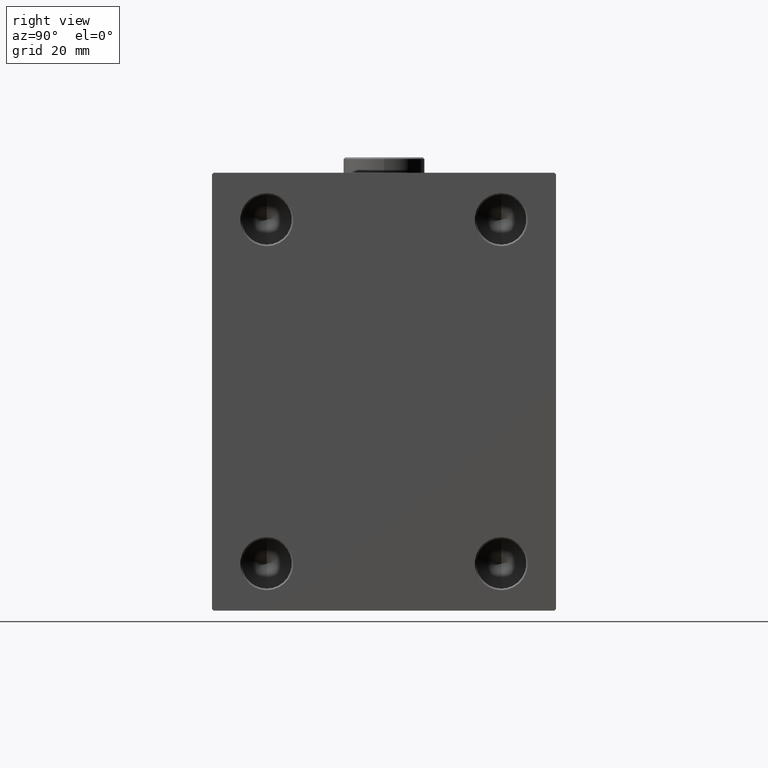
[diagram: clean part render]
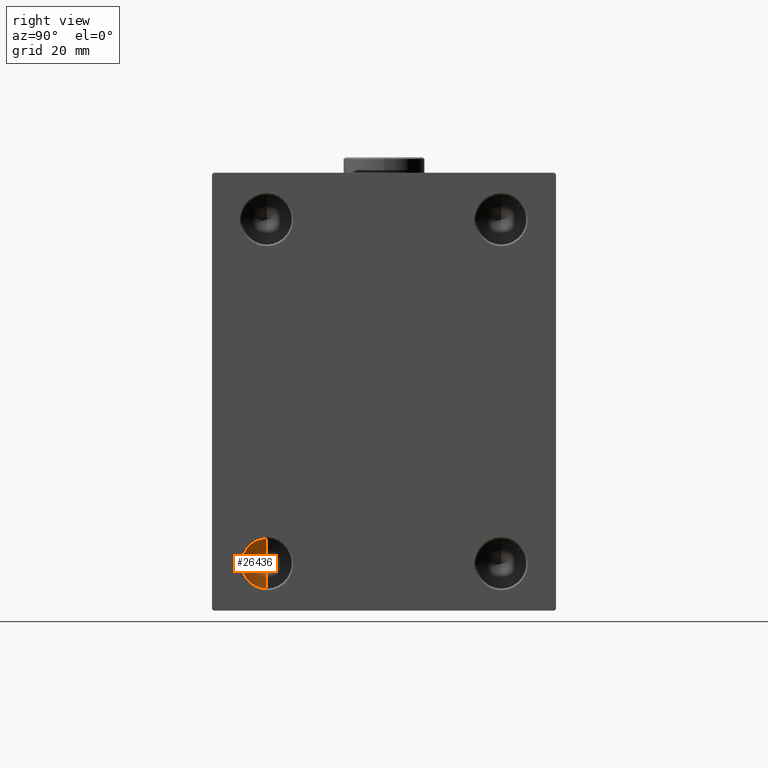
[diagram: same view with one face highlighted and labeled with its STEP entity id]
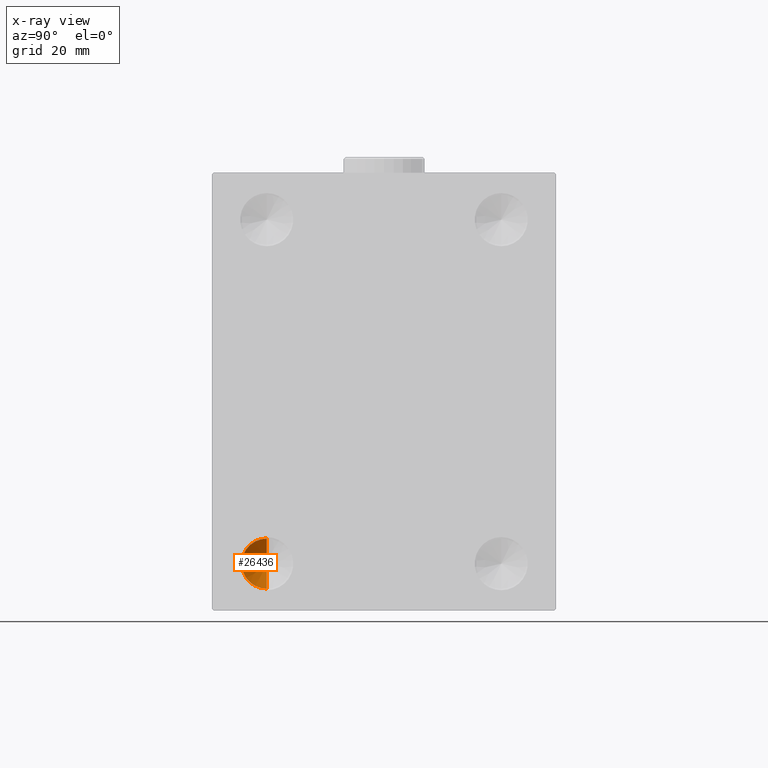
[diagram: x-ray of the same camera — body ghosted, the highlighted face saturated]
A machine part, right view. The second image highlights one B-rep face of the part: STEP entity #26436.
The next image is the same camera in x-ray: the body ghosted, the highlighted face saturated — about 0% of this face is hidden behind the body in this view.
In plain terms, the highlighted conical surface has half-angle 59 deg.
Its self-contained STEP definition (entity closure, byte-faithful):
#285 = EDGE_LOOP ( 'NONE', ( #9144, #20931, #8654 ) ) ;
#4556 = DIRECTION ( 'NONE',  ( 1.000000000000000000, -0.000000000000000000, -0.000000000000000000 ) ) ;
#6247 = LINE ( 'NONE', #13398, #16979 ) ;
#8654 = ORIENTED_EDGE ( 'NONE', *, *, #31043, .F. ) ;
#9144 = ORIENTED_EDGE ( 'NONE', *, *, #20794, .F. ) ;
#9486 = DIRECTION ( 'NONE',  ( 0.5150380749100550437, 0.000000000000000000, 0.8571673007021117785 ) ) ;
#13398 = CARTESIAN_POINT ( 'NONE',  ( 103.0000000000000142, -37.49999999999999289, -47.00000000000000000 ) ) ;
#14622 = CARTESIAN_POINT ( 'NONE',  ( 103.0000000000000142, -37.49999999999999289, -62.99999999999998579 ) ) ;
#15610 = AXIS2_PLACEMENT_3D ( 'NONE', #29296, #4556, #29526 ) ;
#16979 = VECTOR ( 'NONE', #9486, 1000.000000000000000 ) ;
#20794 = EDGE_CURVE ( 'NONE', #26751, #30046, #22033, .T. ) ;
#20931 = ORIENTED_EDGE ( 'NONE', *, *, #25672, .T. ) ;
#21453 = FACE_OUTER_BOUND ( 'NONE', #285, .T. ) ;
#22033 = LINE ( 'NONE', #14622, #28021 ) ;
#23147 = CIRCLE ( 'NONE', #30536, 7.999999999999992895 ) ;
#25672 = EDGE_CURVE ( 'NONE', #26751, #29253, #6247, .T. ) ;
#25975 = DIRECTION ( 'NONE',  ( 0.000000000000000000, 0.000000000000000000, 1.000000000000000000 ) ) ;
#26436 = ADVANCED_FACE ( 'NONE', ( #21453 ), #28168, .F. ) ;
#26478 = CARTESIAN_POINT ( 'NONE',  ( 103.0000000000000142, -37.49999999999999289, -62.99999999999998579 ) ) ;
#26751 = VERTEX_POINT ( 'NONE', #31119 ) ;
#28021 = VECTOR ( 'NONE', #36114, 1000.000000000000000 ) ;
#28168 = CONICAL_SURFACE ( 'NONE', #15610, 7.999999999999992895, 1.029744258676653423 ) ;
#29253 = VERTEX_POINT ( 'NONE', #30853 ) ;
#29296 = CARTESIAN_POINT ( 'NONE',  ( 103.0000000000000142, -37.49999999999999289, -54.99999999999999289 ) ) ;
#29526 = DIRECTION ( 'NONE',  ( 0.000000000000000000, 0.000000000000000000, 1.000000000000000000 ) ) ;
#30046 = VERTEX_POINT ( 'NONE', #26478 ) ;
#30536 = AXIS2_PLACEMENT_3D ( 'NONE', #39142, #32224, #25975 ) ;
#30853 = CARTESIAN_POINT ( 'NONE',  ( 103.0000000000000142, -37.49999999999999289, -47.00000000000000000 ) ) ;
#31043 = EDGE_CURVE ( 'NONE', #30046, #29253, #23147, .T. ) ;
#31119 = CARTESIAN_POINT ( 'NONE',  ( 98.19311504777952848, -37.50000000000000000, -54.99999999999999289 ) ) ;
#32224 = DIRECTION ( 'NONE',  ( -1.000000000000000000, 0.000000000000000000, 0.000000000000000000 ) ) ;
#36114 = DIRECTION ( 'NONE',  ( 0.5150380749100550437, -1.049727191138617956E-16, -0.8571673007021117785 ) ) ;
#39142 = CARTESIAN_POINT ( 'NONE',  ( 103.0000000000000142, -37.49999999999999289, -54.99999999999999289 ) ) ;